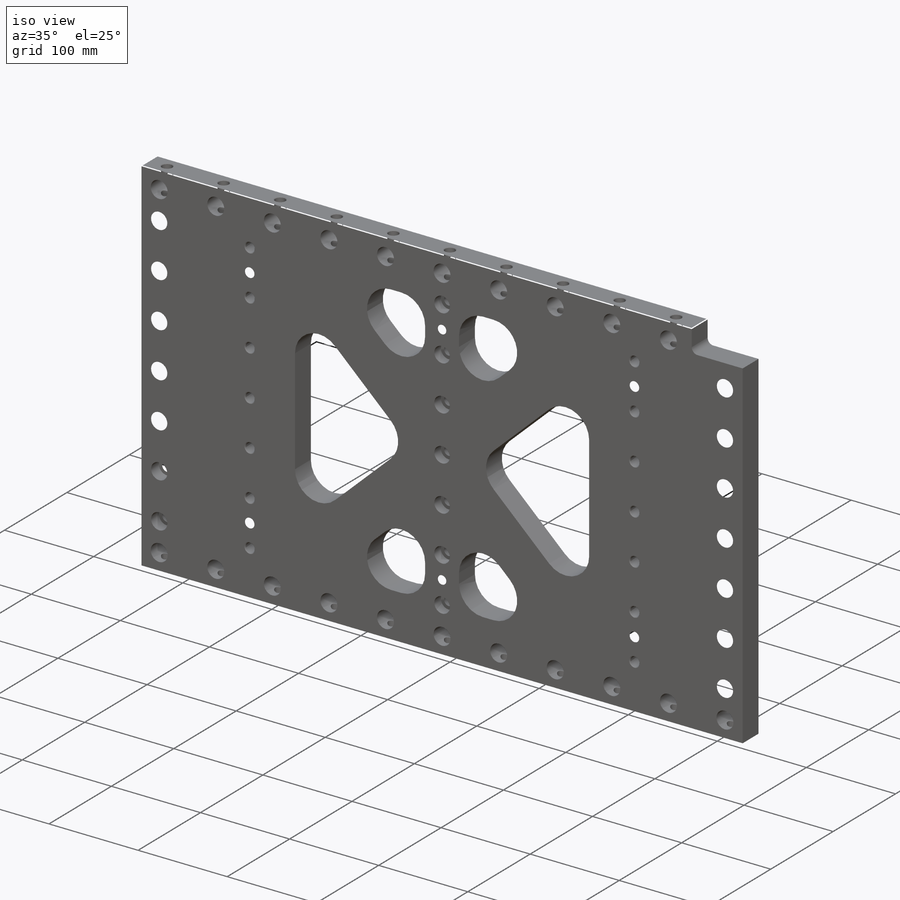
[diagram: iso view]
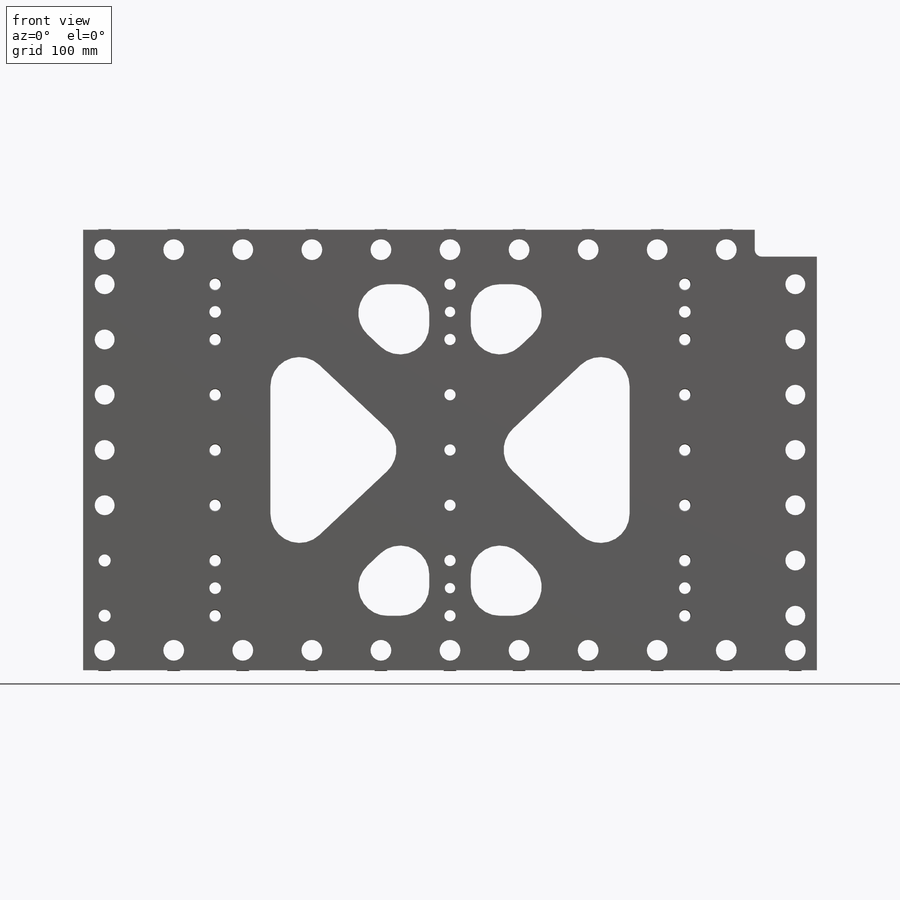
[diagram: front view]
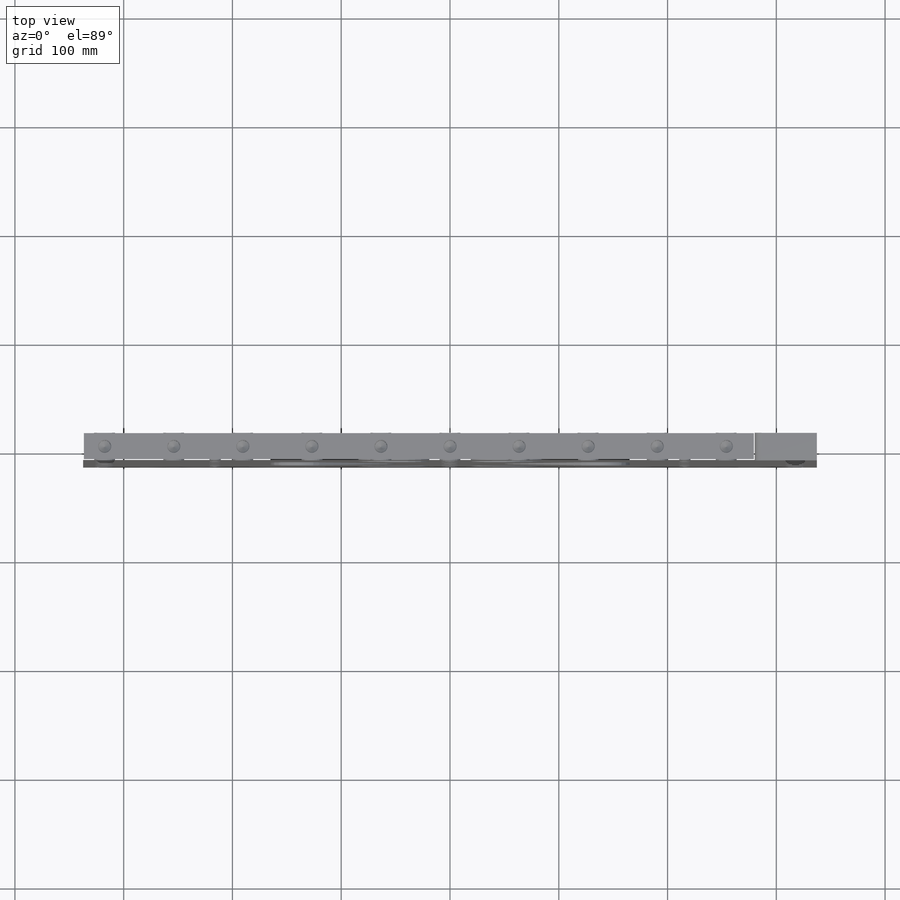
[diagram: top view]
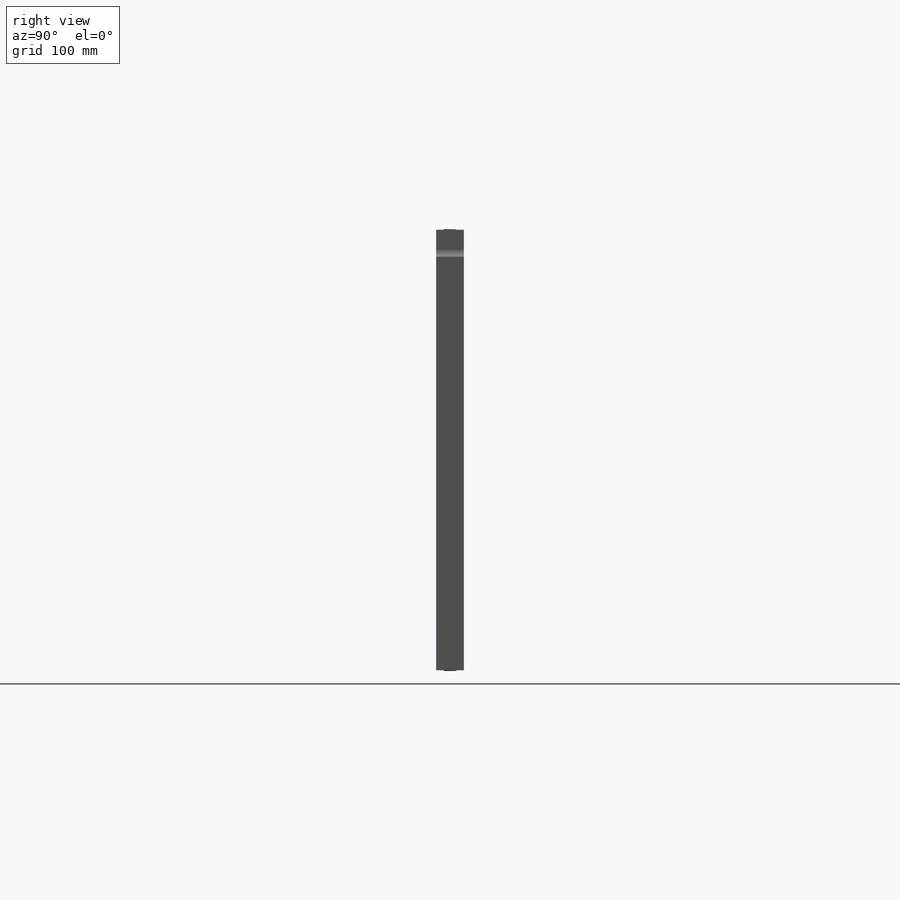
[diagram: right view]
SOLIDWORKS PART (.sldprt)
format: sldprt  version: not decoded by parser v0  size: 1,030,656 bytes
history: native  units: mm
features: sketch x22, hole x9, pattern_linear x4, fillet x3, extrude x2, mirror x2, cut_extrude x2, material x1, chamfer x1 (+14 scaffold rows collapsed)
feature tree (60):
  scaffold x14  (default folders/planes/origin — collapsed)
  material  "6061-T6 Al"
  sketch  "Sketch2"  dims[D1=674.6875mm D2=406.4mm]
  extrude  "Extrude1"  Depth=25.4mm
  hole  "CBORE for 3/8 Socket Head Cap Screw3"  Diameter=10.31748mm Depth=25.4mm
  sketch  "Sketch4"  dims[D1=431.8mm]
  sketch  "Sketch3"  dims[hole-wizard template sketch: 43 standard entries collapsed; hole parameters kept: c12.C'Bore Dia.=17.4625mm c12.C'Bore Depth=10.668mm c12.Far C'Sink Dia.=11.684mm c12.D6=~2.963249mm c12.Far C'Sink Angle=82.0deg]
  pattern_linear  "LPattern3"  Count1=4 Count2=4 Spacing1=50.8mm Spacing2=50.8mm
  mirror  "Mirror1"
  sketch  "Sketch8"  dims[c1.D1=50.8mm c1.D2=76.2mm c1.D3=50.8mm c2.D2=319.278mm c2.D1=50.8mm c3.D2=50.8mm c3.D4=431.8mm]
  cut_extrude  "Triangles -- Cut-Extrude2"  [1 undecoded]
  fillet  "Triangles -- Fillet1"  Radius=26.67mm
  sketch  "Sketch14"  dims[D1=38.1mm]
  extrude  "Extrude5"  [1 undecoded]
  fillet  "Fillet3"  Radius=26.67mm
  hole  "CBORE for 3/8 Socket Head Cap Screw2"  Diameter=10.31748mm Depth=25.4mm
  sketch  "Sketch16"
  sketch  "Sketch15"  dims[hole-wizard template sketch: 43 standard entries collapsed; hole parameters kept: c12.C'Bore Dia.=17.4625mm c12.C'Bore Depth=10.668mm c12.Far C'Sink Dia.=11.684mm c12.D6=~2.963249mm c12.Far C'Sink Angle=82.0deg]
  pattern_linear  "LPattern5"  Count1=4 Count2=4 Spacing1=50.8mm Spacing2=50.8mm
  hole  "3/4 (0.75) Diameter Hole1"  Diameter=19.05mm Depth=25.4mm
  sketch  "Sketch11"  dims[D1=19.05mm]
  sketch  "Sketch10"  dims[hole-wizard template sketch: 61 standard entries collapsed; hole parameters above]
  hole  "7/16 (0.4375) Diameter Hole1"  Diameter=11.1125mm Depth=34.925mm
  sketch  "Sketch13"
  sketch  "Sketch12"  dims[hole-wizard template sketch: 46 standard entries collapsed; hole parameters above]
  pattern_linear  "LPattern4"  Count1=6 Count2=6 Spacing1=63.5mm Spacing2=63.5mm
  hole  "3/4 (0.75) Diameter Hole2"  Diameter=19.05mm Depth=25.4mm
  sketch  "Sketch27"  dims[D1=19.05mm]
  sketch  "Sketch26"  dims[hole-wizard template sketch: 61 standard entries collapsed; hole parameters above]
  hole  "7/16 (0.4375) Diameter Hole2"  Diameter=11.1125mm Depth=34.925mm
  sketch  "Sketch29"
  sketch  "Sketch28"  dims[hole-wizard template sketch: 46 standard entries collapsed; hole parameters above]
  pattern_linear  "LPattern6"  Count1=6 Count2=5 Spacing1=63.5mm Spacing2=63.5mm
  sketch  "Sketch17"  dims[D1=57.15mm]
  cut_extrude  "Cut-Extrude1"  Depth=25.4mm
  fillet  "Fillet4"  Radius=6.35mm
  hole  "CBORE for 3/8 Socket Head Cap Screw1"  Diameter=11.1125mm Depth=25.4mm
  sketch  "Sketch20"  dims[D1=50.8mm D2=317.5mm D3=50.8mm]
  sketch  "Sketch19"  dims[hole-wizard template sketch: 41 standard entries collapsed; hole parameters kept: c12.Thru Hole Dia.=11.1125mm c12.Thru Hole Depth=25.4mm c12.C'Bore Dia.=~18.25625mm c12.C'Bore Depth=12.7mm c12.Far C'Sink Dia.=12.7mm c12.D6=~2.963249mm c12.Far C'Sink Angle=82.0deg]
  mirror  "Mirror3"
  hole  "3/8 (0.375) Pin + Lead-In Hole1"  Diameter=9.525mm Depth=25.4mm
  sketch  "Sketch22"  dims[D1=76.2mm]
  sketch  "Sketch23"  dims[hole-wizard template sketch: 42 standard entries collapsed; hole parameters kept: c12.Thru Hole Depth=25.4mm c12.C'Bore Dia.=9.5758mm c12.C'Bore Depth=3.175mm c12.Near C'Sink Dia.=10.668mm c12.D6=~4.399409mm c12.Near C'Sink Angle=82.0deg]
  hole  "3/8 (0.375) Pin + Lead-In Hole2"  Diameter=9.525mm Depth=25.4mm
  sketch  "Sketch25"  dims[D1=431.8mm D2=76.2mm]
  sketch  "Sketch24"  dims[hole-wizard template sketch: 42 standard entries collapsed; hole parameters kept: c12.Thru Hole Depth=25.4mm c12.C'Bore Dia.=9.5758mm c12.C'Bore Depth=3.175mm c12.Near C'Sink Dia.=10.668mm c12.D6=~4.399409mm c12.Near C'Sink Angle=82.0deg]
  chamfer  "Chamfer1"  Distance=0.762mm Angle=45deg
decode coverage: 38 of 45 modeling features carry decoded parameters
note: ~ marks probable driven/reference dimensions
note: 2 parameter values undecoded
summary: Diameter pulled from absorbed wizard sketch
note: suppression state not decoded; provenance and decode notes live in map.json
